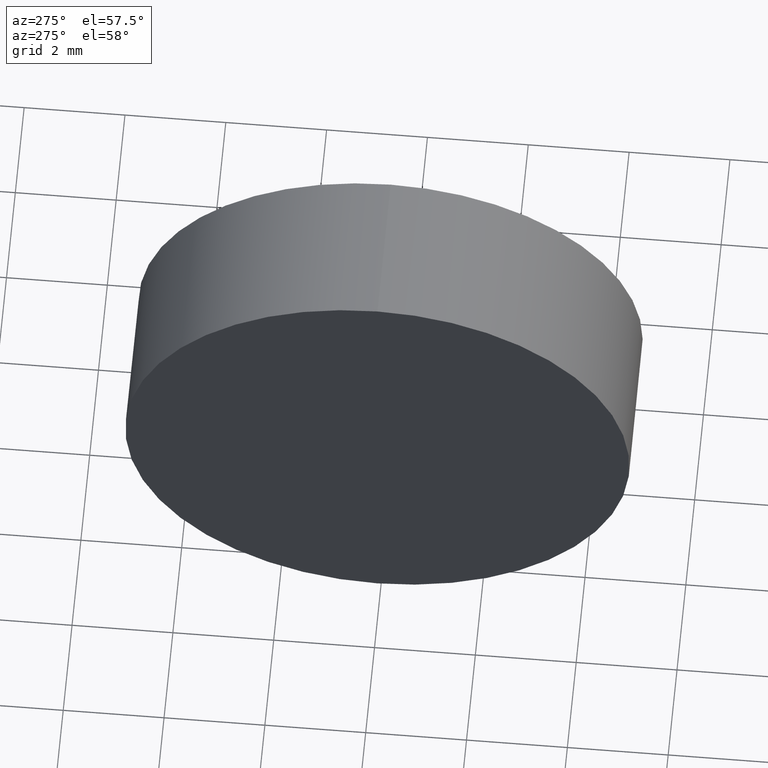
[diagram: clean part render]
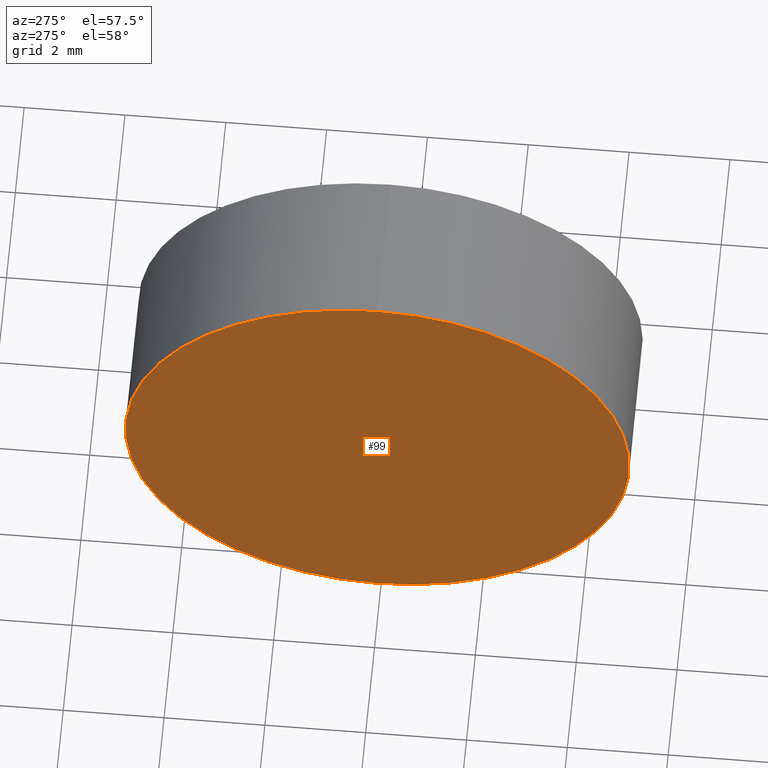
[diagram: same view with one face highlighted and labeled with its STEP entity id]
A machine part, auxiliary view. The second image highlights one B-rep face of the part: STEP entity #99.
In plain terms, the highlighted planar face has unit normal (1, 0, 0).
Its self-contained STEP definition (entity closure, byte-faithful):
#12 = CARTESIAN_POINT ( 'NONE',  ( 41.36582732549757700, 26.06225218280608000, 0.0000000000000000000 ) ) ;
#14 = DIRECTION ( 'NONE',  ( 0.0000000000000000000, 0.0000000000000000000, 1.000000000000000000 ) ) ;
#20 = ORIENTED_EDGE ( 'NONE', *, *, #45, .T. ) ;
#22 = AXIS2_PLACEMENT_3D ( 'NONE', #12, #118, #14 ) ;
#24 = DIRECTION ( 'NONE',  ( 1.000000000000000000, 0.0000000000000000000, 0.0000000000000000000 ) ) ;
#27 = PLANE ( 'NONE',  #129 ) ;
#38 = FACE_OUTER_BOUND ( 'NONE', #59, .T. ) ;
#45 = EDGE_CURVE ( 'NONE', #108, #97, #154, .T. ) ;
#51 = AXIS2_PLACEMENT_3D ( 'NONE', #86, #184, #71 ) ;
#59 = EDGE_LOOP ( 'NONE', ( #102, #20 ) ) ;
#66 = EDGE_CURVE ( 'NONE', #97, #108, #180, .T. ) ;
#71 = DIRECTION ( 'NONE',  ( 0.0000000000000000000, 0.0000000000000000000, 1.000000000000000000 ) ) ;
#86 = CARTESIAN_POINT ( 'NONE',  ( 41.36582732549757700, 26.06225218280608000, 0.0000000000000000000 ) ) ;
#88 = CARTESIAN_POINT ( 'NONE',  ( 41.36582732549757700, 26.06225218280608000, 4.999999999999997300 ) ) ;
#97 = VERTEX_POINT ( 'NONE', #88 ) ;
#99 = ADVANCED_FACE ( 'NONE', ( #38 ), #27, .F. ) ;
#102 = ORIENTED_EDGE ( 'NONE', *, *, #66, .T. ) ;
#104 = CARTESIAN_POINT ( 'NONE',  ( 41.36582732549757700, 26.06225218280608000, 0.0000000000000000000 ) ) ;
#108 = VERTEX_POINT ( 'NONE', #157 ) ;
#118 = DIRECTION ( 'NONE',  ( -1.000000000000000000, -0.0000000000000000000, -0.0000000000000000000 ) ) ;
#129 = AXIS2_PLACEMENT_3D ( 'NONE', #104, #24, #130 ) ;
#130 = DIRECTION ( 'NONE',  ( 0.0000000000000000000, 0.0000000000000000000, -1.000000000000000000 ) ) ;
#154 = CIRCLE ( 'NONE', #22, 4.999999999999997300 ) ;
#157 = CARTESIAN_POINT ( 'NONE',  ( 41.36582732549757700, 26.06225218280608000, -4.999999999999998200 ) ) ;
#180 = CIRCLE ( 'NONE', #51, 4.999999999999997300 ) ;
#184 = DIRECTION ( 'NONE',  ( -1.000000000000000000, -0.0000000000000000000, -0.0000000000000000000 ) ) ;